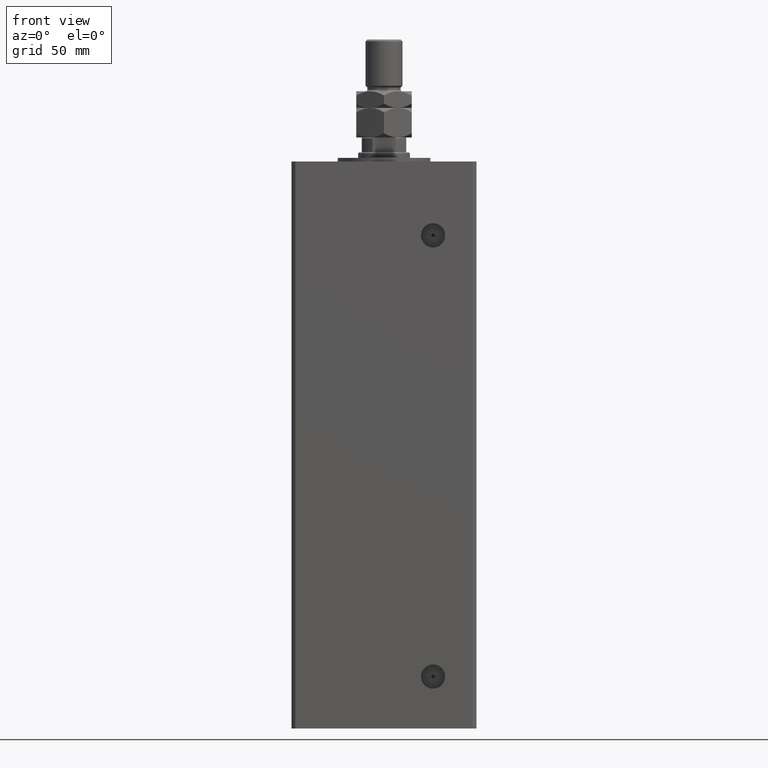
[diagram: clean part render]
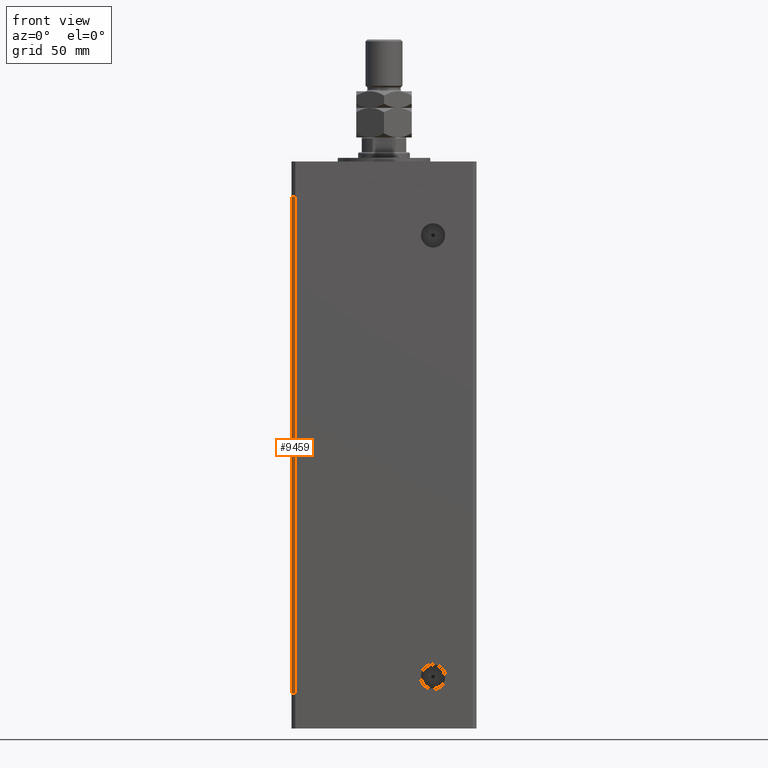
[diagram: same view with one face highlighted and labeled with its STEP entity id]
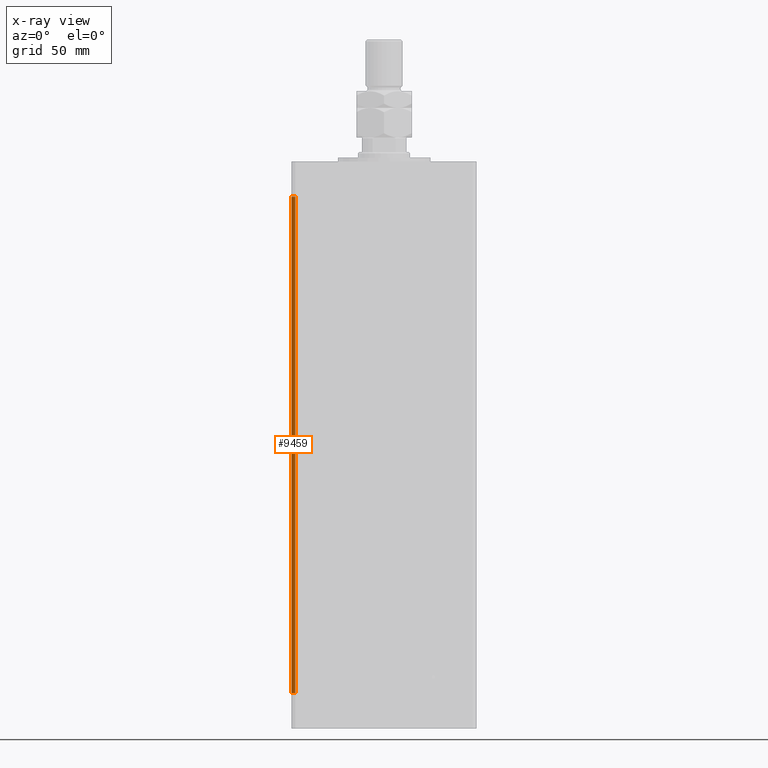
[diagram: x-ray of the same camera — body ghosted, the highlighted face saturated]
A machine part, front view. The second image highlights one B-rep face of the part: STEP entity #9459.
The next image is the same camera in x-ray: the body ghosted, the highlighted face saturated — about 0% of this face is hidden behind the body in this view.
In plain terms, the highlighted planar face has unit normal (0.7071, 0.7071, 0).
Its self-contained STEP definition (entity closure, byte-faithful):
#1731 = CARTESIAN_POINT ( 'NONE',  ( -47.99999999999998579, -43.50000000000000000, 268.5000000000000000 ) ) ;
#3948 = VERTEX_POINT ( 'NONE', #13629 ) ;
#4244 = EDGE_LOOP ( 'NONE', ( #43814, #28472, #11428, #30297 ) ) ;
#6875 = LINE ( 'NONE', #20439, #50486 ) ;
#9459 = ADVANCED_FACE ( 'NONE', ( #36347 ), #40675, .F. ) ;
#11133 = CARTESIAN_POINT ( 'NONE',  ( -47.99999999999998579, -43.50000000000000000, 268.5000000000000000 ) ) ;
#11428 = ORIENTED_EDGE ( 'NONE', *, *, #35914, .F. ) ;
#11859 = DIRECTION ( 'NONE',  ( 0.7071067811865475727, 0.7071067811865475727, -0.000000000000000000 ) ) ;
#13629 = CARTESIAN_POINT ( 'NONE',  ( -49.99999999999998579, -41.49999999999999289, 0.000000000000000000 ) ) ;
#13664 = VECTOR ( 'NONE', #47670, 1000.000000000000114 ) ;
#19497 = DIRECTION ( 'NONE',  ( -0.7071067811865474617, 0.7071067811865474617, 0.000000000000000000 ) ) ;
#20173 = DIRECTION ( 'NONE',  ( 0.7071067811865474617, -0.7071067811865474617, 0.000000000000000000 ) ) ;
#20439 = CARTESIAN_POINT ( 'NONE',  ( -49.99999999999998579, -41.49999999999999289, 0.000000000000000000 ) ) ;
#21709 = EDGE_CURVE ( 'NONE', #41289, #3948, #53572, .T. ) ;
#27290 = LINE ( 'NONE', #44125, #13664 ) ;
#28122 = VECTOR ( 'NONE', #28834, 1000.000000000000000 ) ;
#28472 = ORIENTED_EDGE ( 'NONE', *, *, #28727, .F. ) ;
#28727 = EDGE_CURVE ( 'NONE', #47132, #51062, #38987, .T. ) ;
#28834 = DIRECTION ( 'NONE',  ( -0.000000000000000000, -0.000000000000000000, -1.000000000000000000 ) ) ;
#30297 = ORIENTED_EDGE ( 'NONE', *, *, #21709, .T. ) ;
#35639 = CARTESIAN_POINT ( 'NONE',  ( -47.99999999999998579, -43.50000000000000000, 0.000000000000000000 ) ) ;
#35914 = EDGE_CURVE ( 'NONE', #41289, #47132, #27290, .T. ) ;
#36347 = FACE_OUTER_BOUND ( 'NONE', #4244, .T. ) ;
#38987 = LINE ( 'NONE', #1731, #53493 ) ;
#40675 = PLANE ( 'NONE',  #41536 ) ;
#41289 = VERTEX_POINT ( 'NONE', #45886 ) ;
#41536 = AXIS2_PLACEMENT_3D ( 'NONE', #45014, #11859, #19497 ) ;
#41850 = CARTESIAN_POINT ( 'NONE',  ( -49.99999999999998579, -41.49999999999999289, 268.5000000000000000 ) ) ;
#43814 = ORIENTED_EDGE ( 'NONE', *, *, #50832, .T. ) ;
#44125 = CARTESIAN_POINT ( 'NONE',  ( -49.99999999999998579, -41.49999999999999289, 268.5000000000000000 ) ) ;
#45014 = CARTESIAN_POINT ( 'NONE',  ( -49.99999999999998579, -41.49999999999999289, 268.5000000000000000 ) ) ;
#45886 = CARTESIAN_POINT ( 'NONE',  ( -49.99999999999998579, -41.49999999999999289, 268.5000000000000000 ) ) ;
#47132 = VERTEX_POINT ( 'NONE', #11133 ) ;
#47670 = DIRECTION ( 'NONE',  ( 0.7071067811865474617, -0.7071067811865474617, 0.000000000000000000 ) ) ;
#47929 = DIRECTION ( 'NONE',  ( -0.000000000000000000, -0.000000000000000000, -1.000000000000000000 ) ) ;
#50486 = VECTOR ( 'NONE', #20173, 1000.000000000000114 ) ;
#50832 = EDGE_CURVE ( 'NONE', #3948, #51062, #6875, .T. ) ;
#51062 = VERTEX_POINT ( 'NONE', #35639 ) ;
#53493 = VECTOR ( 'NONE', #47929, 1000.000000000000000 ) ;
#53572 = LINE ( 'NONE', #41850, #28122 ) ;